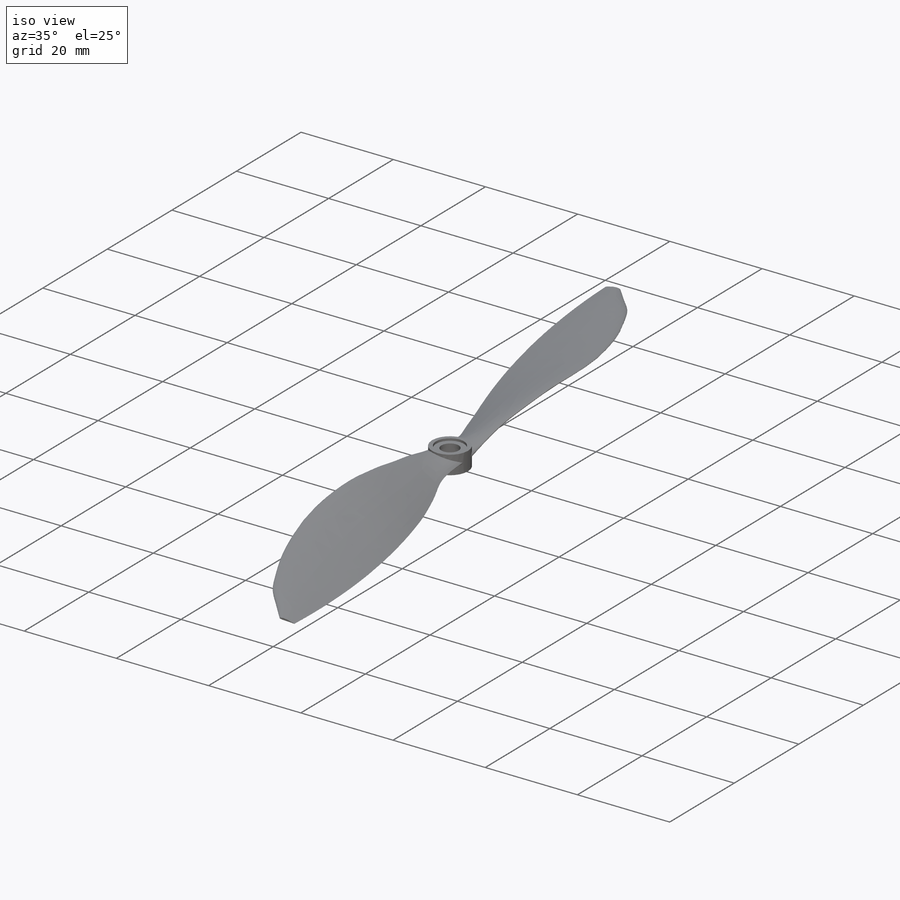
[diagram: iso view]
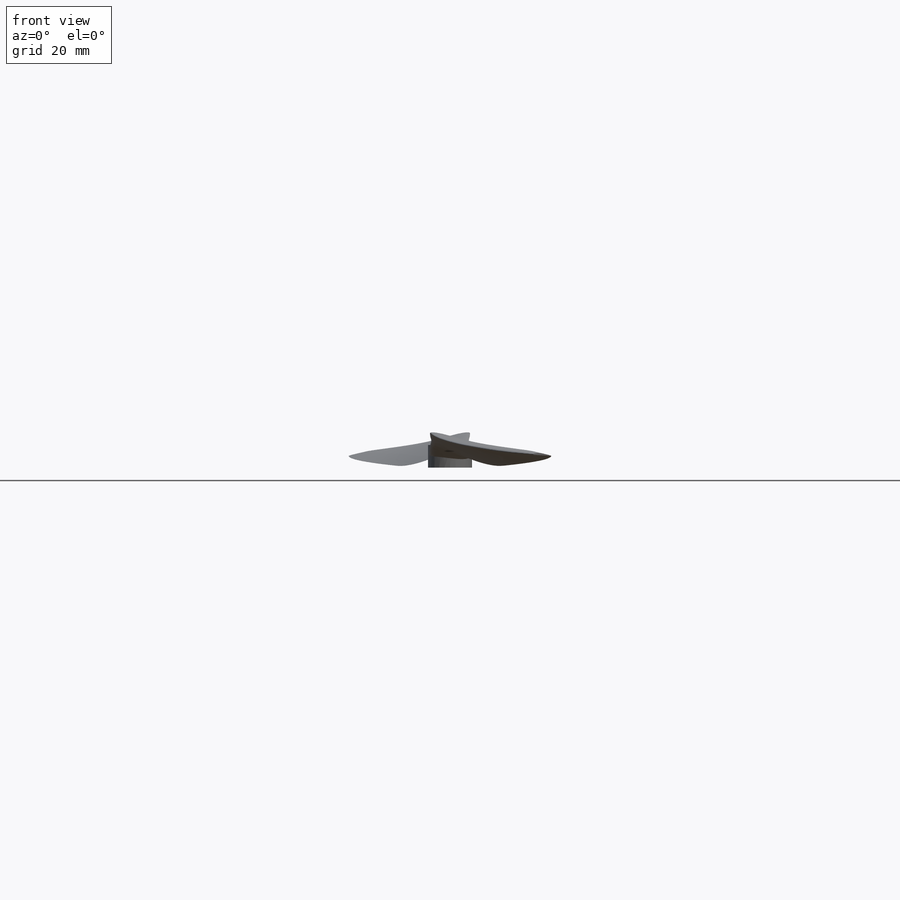
[diagram: front view]
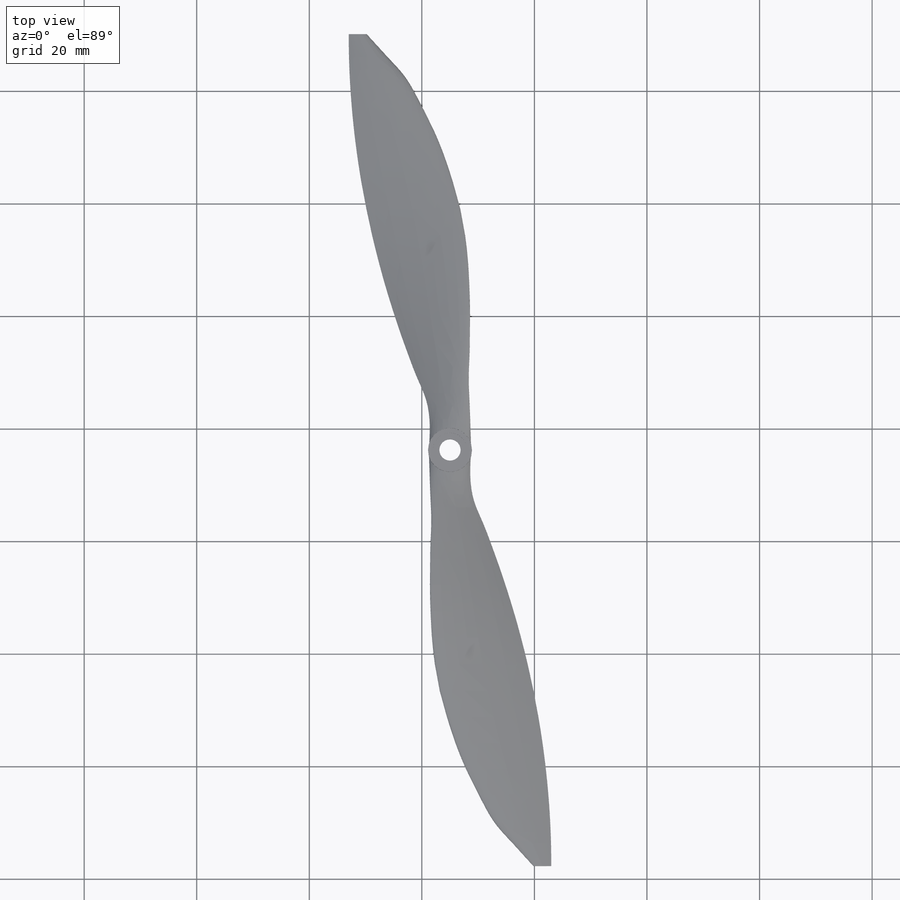
[diagram: top view]
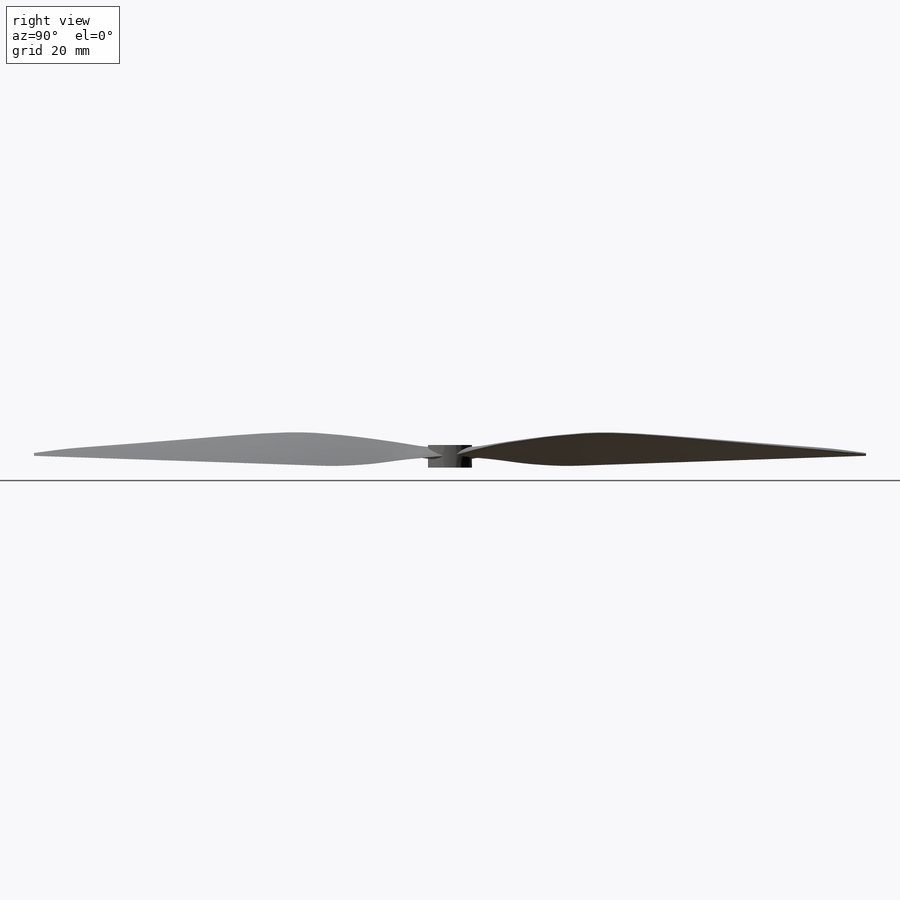
[diagram: right view]
SOLIDWORKS PART (.sldprt)
format: sldprt  version: not decoded by parser v0  size: 568,832 bytes
history: native  units: mm
features: curve x17, sketch x6, plane x4, cut_extrude x3, material x1, extrude x1, pattern_circular x1 (+13 scaffold rows collapsed)
feature tree (46):
  scaffold x13  (default folders/planes/origin — collapsed)
  material  "Material <not specified>"
  plane  "Plane1"  Offset=5mm
  plane  "Plane2"  Offset=3.8mm
  plane  "Plane3"  Offset=5mm
  sketch  "Sketch1"  dims[D1=13.0mm]
  sketch  "Sketch4"  dims[c1.D1=6.5mm c1.D2=12.5mm c1.D3=0.5mm c1.D4=3.5mm c1.D5=2.0mm c2.D1=5.5mm c2.D3=3.0mm]
  sketch  "Sketch6"  dims[D1=0.0mm D2=0.001mm]
  plane  "Plane4"  Offset=5mm
  curve  "Curve2"
  curve  "Curve3"
  curve  "Curve5"
  curve  "Curve6"
  curve  "Curve7"
  curve  "Curve8"
  curve  "Curve9"
  curve  "Curve10"
  curve  "Curve11"
  curve  "Curve12"
  curve  "Curve13"
  curve  "Curve14"
  curve  "Curve15"
  curve  "Curve16"
  curve  "Curve17"
  curve  "Curve18"
  curve  "Curve19"
  extrude  "Boss-Extrude1"  Depth=6.2mm
  pattern_circular  "CirPattern1"  Count=2 Angle=360deg
  sketch  "Sketch7"  dims[D1=6.3mm]
  cut_extrude  "Cut-Extrude1"  [1 undecoded]
  sketch  "Sketch8"  dims[D1=10.15mm]
  cut_extrude  "Cut-Extrude2"  Depth=0.8mm
  sketch  "Sketch9"  dims[D1=8.0mm]
  cut_extrude  "Cut-Extrude3"  Depth=4.5mm
decode coverage: 10 of 28 modeling features carry decoded parameters
note: 1 parameter value undecoded
note: suppression state not decoded; provenance and decode notes live in map.json
